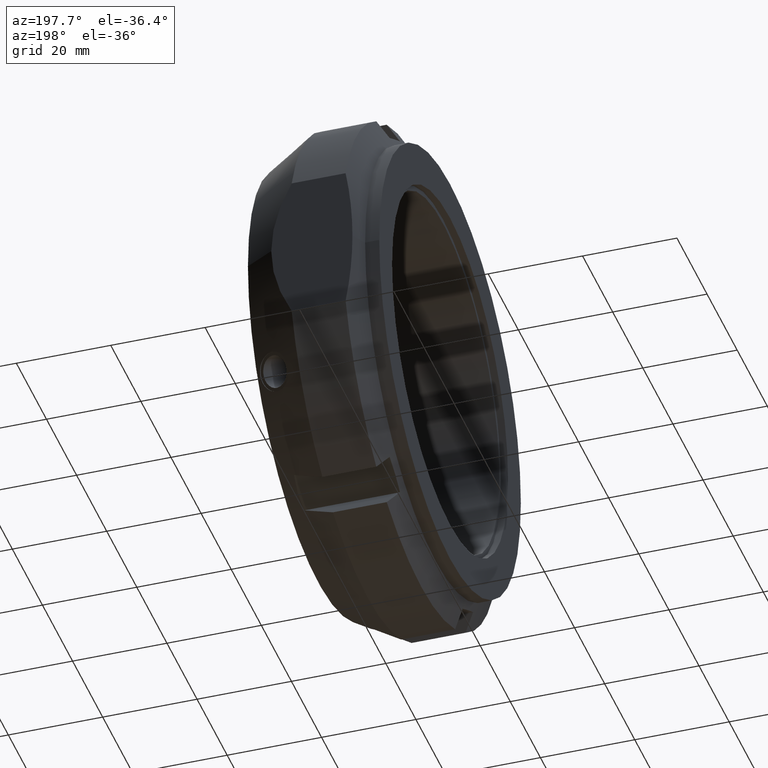
[diagram: clean part render]
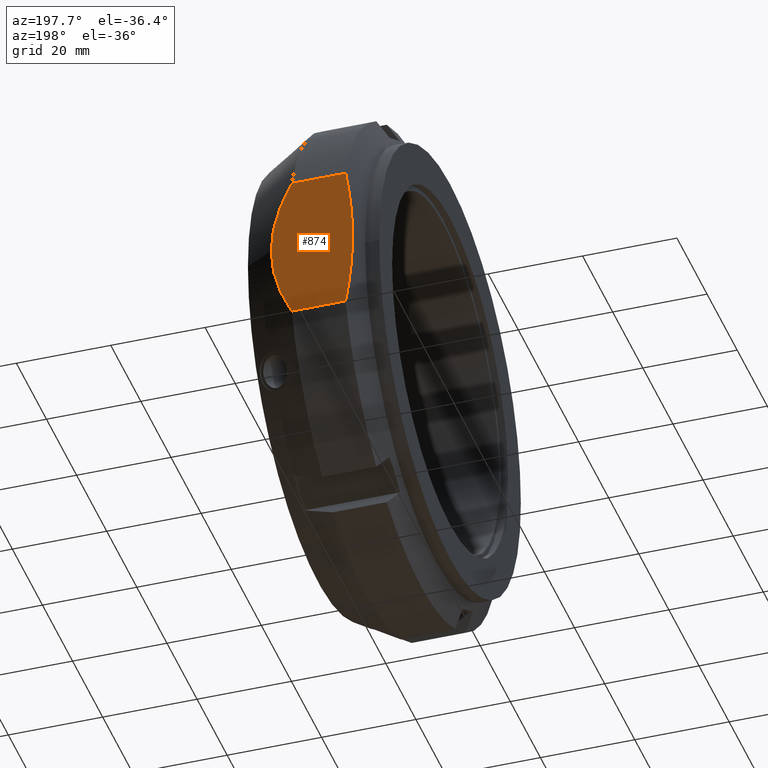
[diagram: same view with one face highlighted and labeled with its STEP entity id]
A machine part, auxiliary view. The second image highlights one B-rep face of the part: STEP entity #874.
In plain terms, the highlighted planar face has unit normal (0, -1, 0).
Its self-contained STEP definition (entity closure, byte-faithful):
#517=CARTESIAN_POINT('',(6.175426480542923,50.000000000000043,16.007810593581993));
#518=VERTEX_POINT('',#517);
#526=CARTESIAN_POINT('',(6.175426480542923,50.000000000000028,-16.007810593582029));
#527=VERTEX_POINT('',#526);
#528=CARTESIAN_POINT('',(6.175426480542921,50.000000000000043,16.007810593581972));
#529=CARTESIAN_POINT('',(3.35740730949837,50.000000000000036,-1.387282E-014));
#530=CARTESIAN_POINT('',(6.175426480542923,50.000000000000028,-16.007810593582011));
#538=(BOUNDED_CURVE()B_SPLINE_CURVE(2,(#528,#529,#530),.UNSPECIFIED.,.F.,.U.)B_SPLINE_CURVE_WITH_KNOTS((3,3),(0.0,3.214550253664292),.UNSPECIFIED.)CURVE()GEOMETRIC_REPRESENTATION_ITEM()RATIONAL_B_SPLINE_CURVE((1.0,1.049999999999999,1.0))REPRESENTATION_ITEM(''));
#539=EDGE_CURVE('',#518,#527,#538,.T.);
#800=CARTESIAN_POINT('',(17.6076951545867,50.000000000000043,16.007810593581993));
#801=VERTEX_POINT('',#800);
#809=CARTESIAN_POINT('',(17.6076951545867,50.000000000000043,16.007810593581993));
#810=DIRECTION('',(-1.0,0.0,0.0));
#811=VECTOR('',#810,11.432268674043778);
#812=LINE('',#809,#811);
#813=EDGE_CURVE('',#801,#518,#812,.T.);
#844=CARTESIAN_POINT('',(0.0,50.000000000000078,100.00000000000001));
#845=DIRECTION('',(0.0,-1.0,0.0));
#846=DIRECTION('',(0.0,0.0,-1.0));
#847=AXIS2_PLACEMENT_3D('',#844,#845,#846);
#848=PLANE('',#847);
#849=ORIENTED_EDGE('',*,*,#539,.F.);
#850=ORIENTED_EDGE('',*,*,#813,.F.);
#851=CARTESIAN_POINT('',(17.6076951545867,50.000000000000028,-16.007810593582029));
#852=VERTEX_POINT('',#851);
#853=CARTESIAN_POINT('',(17.6076951545867,50.000000000000028,-16.007810593582022));
#854=CARTESIAN_POINT('',(26.061752667720409,50.000000000000036,-1.998401E-014));
#855=CARTESIAN_POINT('',(17.6076951545867,50.000000000000043,16.007810593581983));
#863=(BOUNDED_CURVE()B_SPLINE_CURVE(2,(#853,#854,#855),.UNSPECIFIED.,.F.,.U.)B_SPLINE_CURVE_WITH_KNOTS((3,3),(0.0,3.316624790355375),.UNSPECIFIED.)CURVE()GEOMETRIC_REPRESENTATION_ITEM()RATIONAL_B_SPLINE_CURVE((1.0,1.049999999999998,1.0))REPRESENTATION_ITEM(''));
#864=EDGE_CURVE('',#852,#801,#863,.T.);
#865=ORIENTED_EDGE('',*,*,#864,.F.);
#866=CARTESIAN_POINT('',(6.175426480542923,50.000000000000028,-16.007810593582029));
#867=DIRECTION('',(1.0,0.0,0.0));
#868=VECTOR('',#867,11.432268674043778);
#869=LINE('',#866,#868);
#870=EDGE_CURVE('',#527,#852,#869,.T.);
#871=ORIENTED_EDGE('',*,*,#870,.F.);
#872=EDGE_LOOP('',(#849,#850,#865,#871));
#873=FACE_OUTER_BOUND('',#872,.T.);
#874=ADVANCED_FACE('',(#873),#848,.F.);